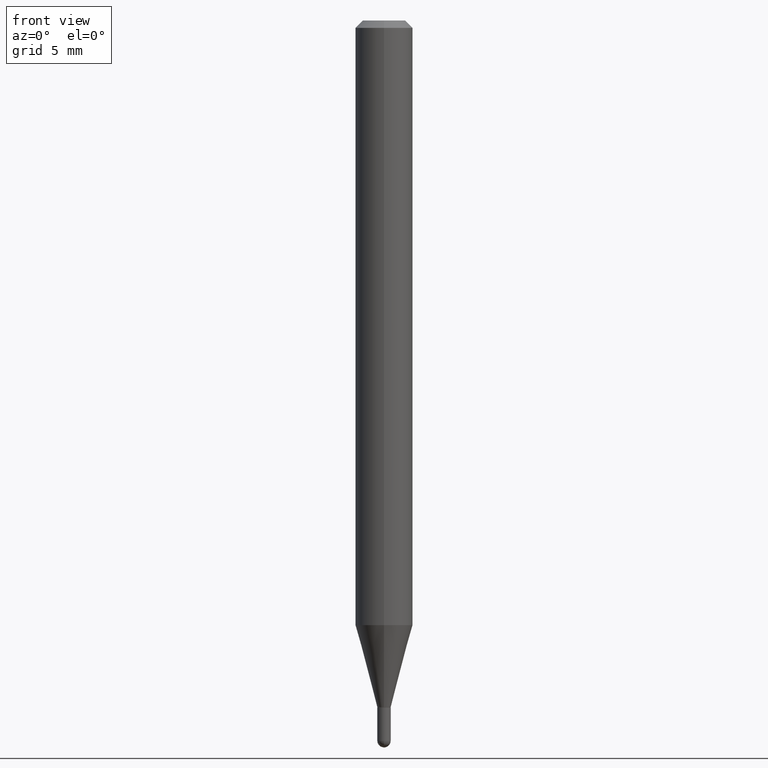
[diagram: clean part render]
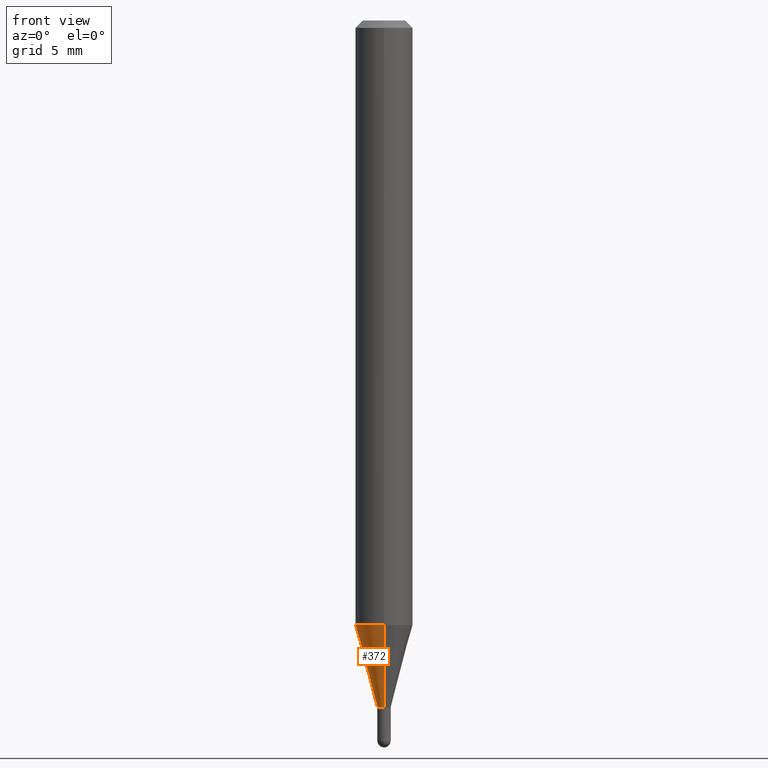
[diagram: same view with one face highlighted and labeled with its STEP entity id]
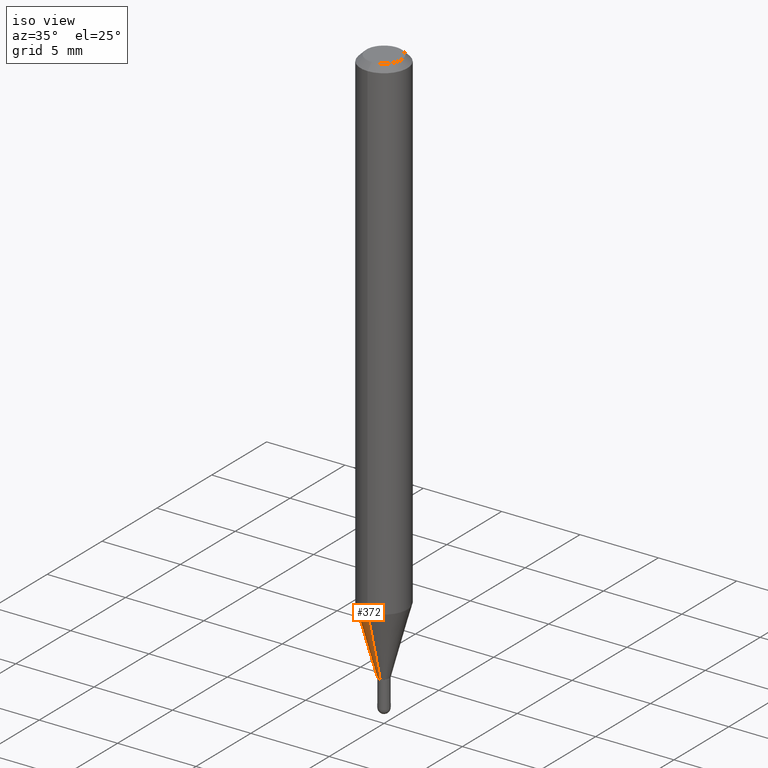
[diagram: same view with one face highlighted and labeled with its STEP entity id]
A machine part, front view. The second image highlights one B-rep face of the part: STEP entity #372.
A second angle (iso view) of the same face is appended — the face is thin or edge-on in the first view.
In plain terms, the highlighted conical surface has half-angle 15 deg.
Its self-contained STEP definition (entity closure, byte-faithful):
#3 = AXIS2_PLACEMENT_3D ( 'NONE', #355, #470, #110 ) ;
#4 = VERTEX_POINT ( 'NONE', #184 ) ;
#8 = ORIENTED_EDGE ( 'NONE', *, *, #499, .T. ) ;
#21 = VECTOR ( 'NONE', #376, 39.37007874015748143 ) ;
#25 = CARTESIAN_POINT ( 'NONE',  ( 3.455689067791622925E-29, -4.933816436075779894E-15, -1.413100000000000023 ) ) ;
#42 = CIRCLE ( 'NONE', #83, 0.01379999999999992344 ) ;
#55 = CARTESIAN_POINT ( 'NONE',  ( 3.455689067791622925E-29, -4.933816436075779894E-15, -1.413100000000000023 ) ) ;
#60 = DIRECTION ( 'NONE',  ( -6.982962677686265922E-15, -1.000000000000000000, 0.000000000000000000 ) ) ;
#70 = CARTESIAN_POINT ( 'NONE',  ( -9.636488495203536860E-17, -0.01380000000000485873, -1.413100000000000023 ) ) ;
#79 = LINE ( 'NONE', #240, #327 ) ;
#82 = DIRECTION ( 'NONE',  ( 1.839019923739650802E-15, 0.2588190451025320638, 0.9659258262890650926 ) ) ;
#83 = AXIS2_PLACEMENT_3D ( 'NONE', #25, #187, #139 ) ;
#94 = ORIENTED_EDGE ( 'NONE', *, *, #195, .F. ) ;
#95 = EDGE_CURVE ( 'NONE', #4, #158, #434, .T. ) ;
#110 = DIRECTION ( 'NONE',  ( -6.982962677686265922E-15, -1.000000000000000000, 4.626330217890369336E-15 ) ) ;
#139 = DIRECTION ( 'NONE',  ( -6.982962677686265922E-15, -1.000000000000000000, 0.000000000000000000 ) ) ;
#157 = EDGE_LOOP ( 'NONE', ( #94, #8, #462, #400 ) ) ;
#158 = VERTEX_POINT ( 'NONE', #477 ) ;
#184 = CARTESIAN_POINT ( 'NONE',  ( 4.195754854663694204E-16, 0.05904999999999564764, -1.244224700957513807 ) ) ;
#187 = DIRECTION ( 'NONE',  ( -2.445466752382438032E-29, 3.491484280005505170E-15, 1.000000000000000000 ) ) ;
#195 = EDGE_CURVE ( 'NONE', #242, #4, #79, .T. ) ;
#216 = DIRECTION ( 'NONE',  ( -2.445466752382438032E-29, 3.491484280005505170E-15, 1.000000000000000000 ) ) ;
#240 = CARTESIAN_POINT ( 'NONE',  ( 9.805489753492783129E-17, 0.01379999999999498989, -1.413100000000000023 ) ) ;
#242 = VERTEX_POINT ( 'NONE', #493 ) ;
#266 = CONICAL_SURFACE ( 'NONE', #392, 0.01379999999999992344, 0.2617993877991576790 ) ;
#325 = LINE ( 'NONE', #374, #21 ) ;
#327 = VECTOR ( 'NONE', #82, 39.37007874015748854 ) ;
#347 = FACE_OUTER_BOUND ( 'NONE', #157, .T. ) ;
#355 = CARTESIAN_POINT ( 'NONE',  ( 3.042710138684580835E-29, -4.344190984187709840E-15, -1.244224700957513585 ) ) ;
#372 = ADVANCED_FACE ( 'NONE', ( #347 ), #266, .T. ) ;
#374 = CARTESIAN_POINT ( 'NONE',  ( -9.636488495203536860E-17, -0.01380000000000485873, -1.413100000000000023 ) ) ;
#376 = DIRECTION ( 'NONE',  ( -1.807323732225380232E-15, -0.2588190451025253469, 0.9659258262890670910 ) ) ;
#392 = AXIS2_PLACEMENT_3D ( 'NONE', #55, #216, #60 ) ;
#400 = ORIENTED_EDGE ( 'NONE', *, *, #95, .F. ) ;
#434 = CIRCLE ( 'NONE', #3, 0.05904999999999999832 ) ;
#436 = VERTEX_POINT ( 'NONE', #70 ) ;
#462 = ORIENTED_EDGE ( 'NONE', *, *, #481, .T. ) ;
#470 = DIRECTION ( 'NONE',  ( -2.445466752382438032E-29, 3.491484280005505170E-15, 1.000000000000000000 ) ) ;
#477 = CARTESIAN_POINT ( 'NONE',  ( -4.123439461173436122E-16, -0.05905000000000434207, -1.244224700957513363 ) ) ;
#481 = EDGE_CURVE ( 'NONE', #436, #158, #325, .T. ) ;
#493 = CARTESIAN_POINT ( 'NONE',  ( 2.588151915006488292E-16, 0.01379999999999498989, -1.413100000000000023 ) ) ;
#499 = EDGE_CURVE ( 'NONE', #242, #436, #42, .T. ) ;